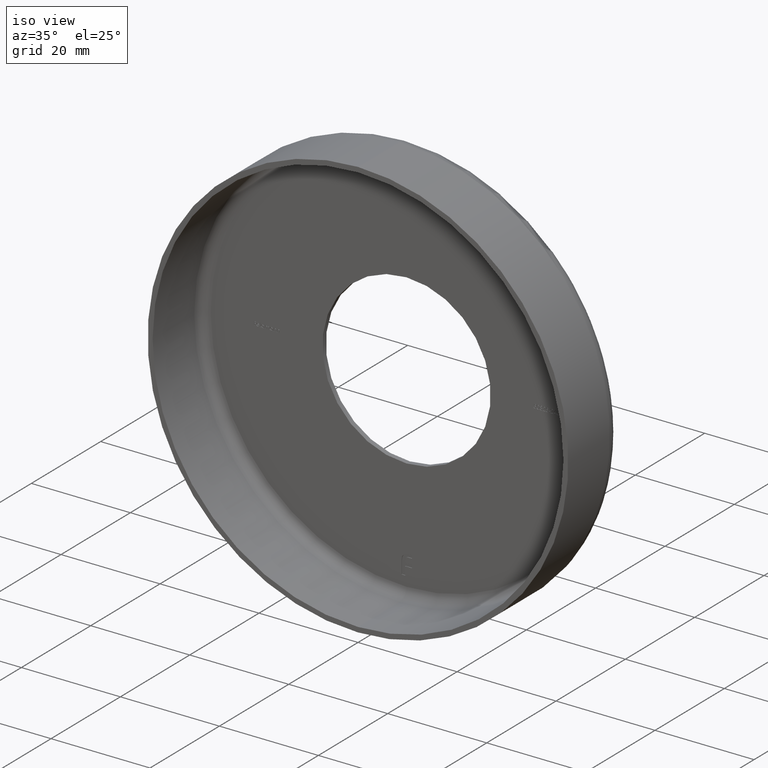
[diagram: clean part render]
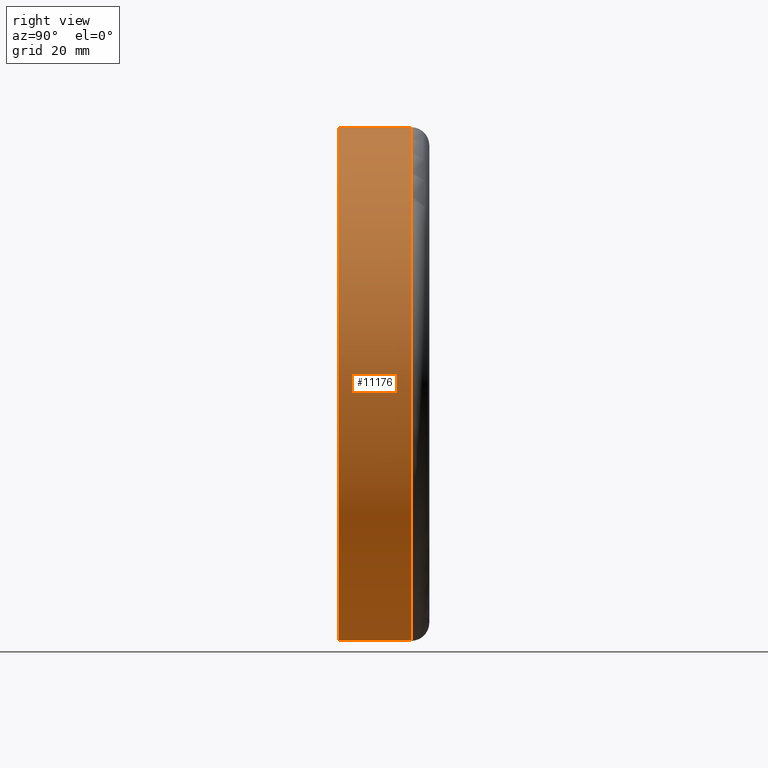
[diagram: tour spotlight — one face highlighted and labeled with its STEP entity id]
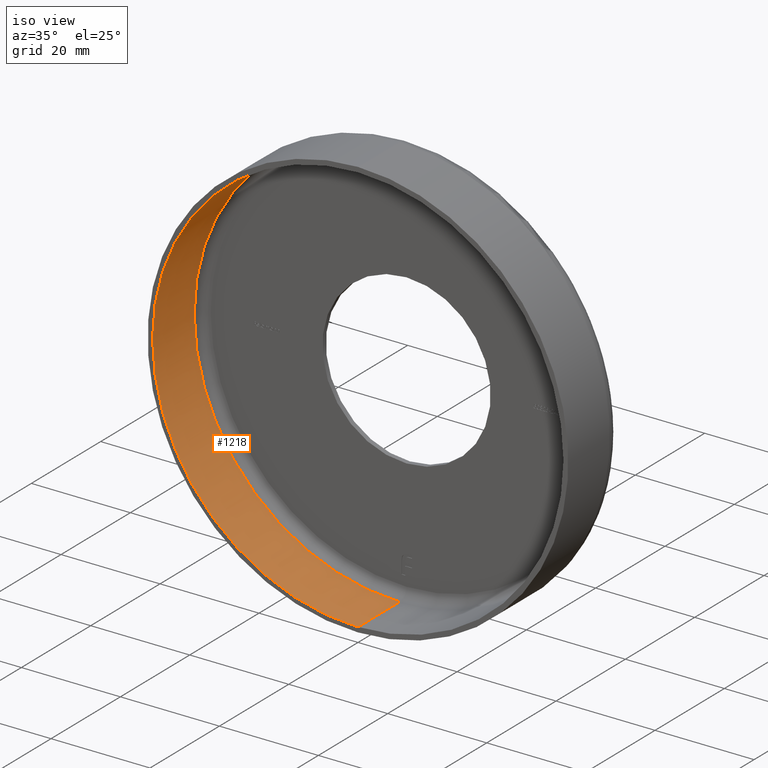
[diagram: tour spotlight — one face highlighted and labeled with its STEP entity id]
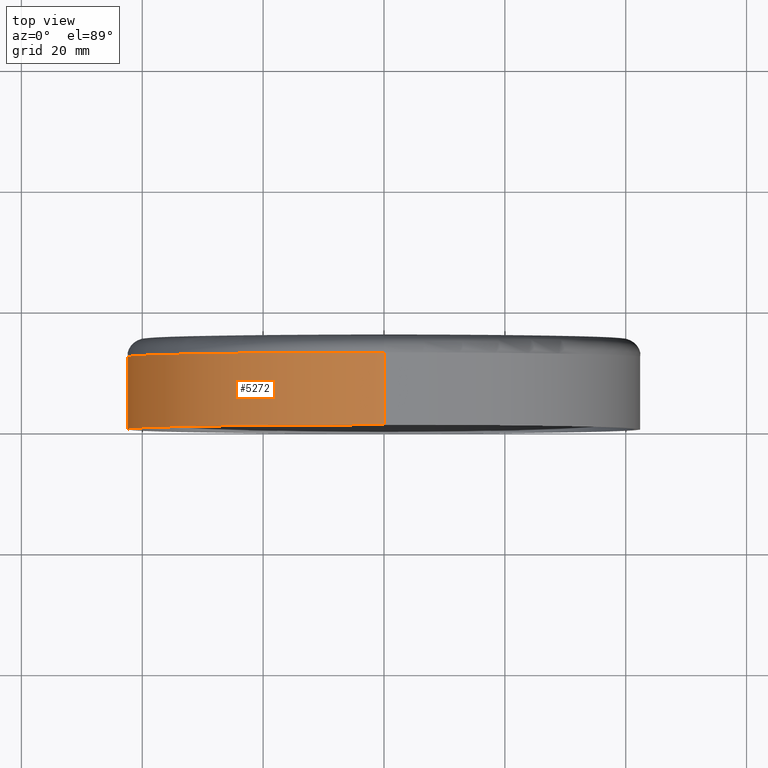
[diagram: tour spotlight — one face highlighted and labeled with its STEP entity id]
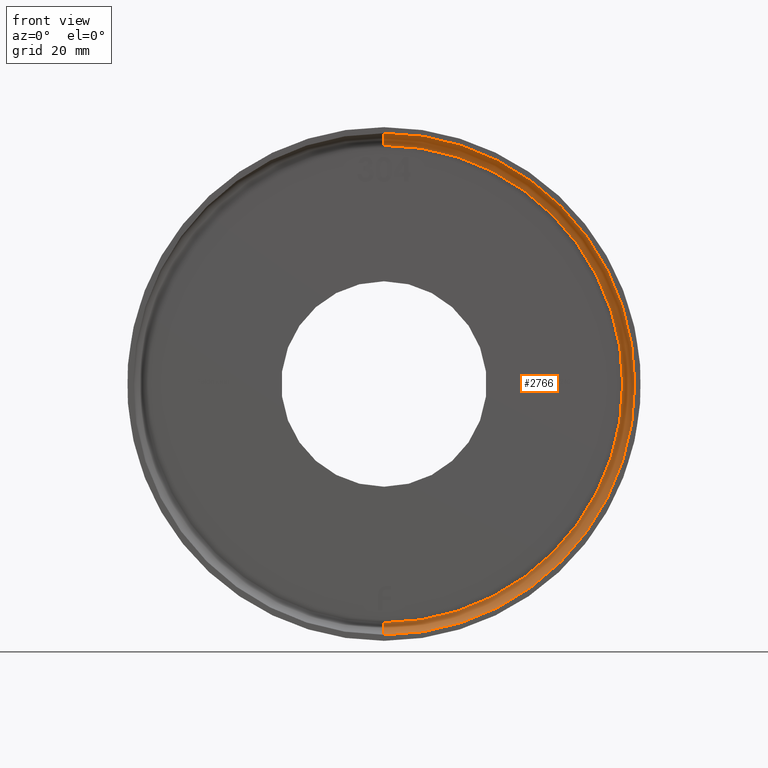
[diagram: tour spotlight — one face highlighted and labeled with its STEP entity id]
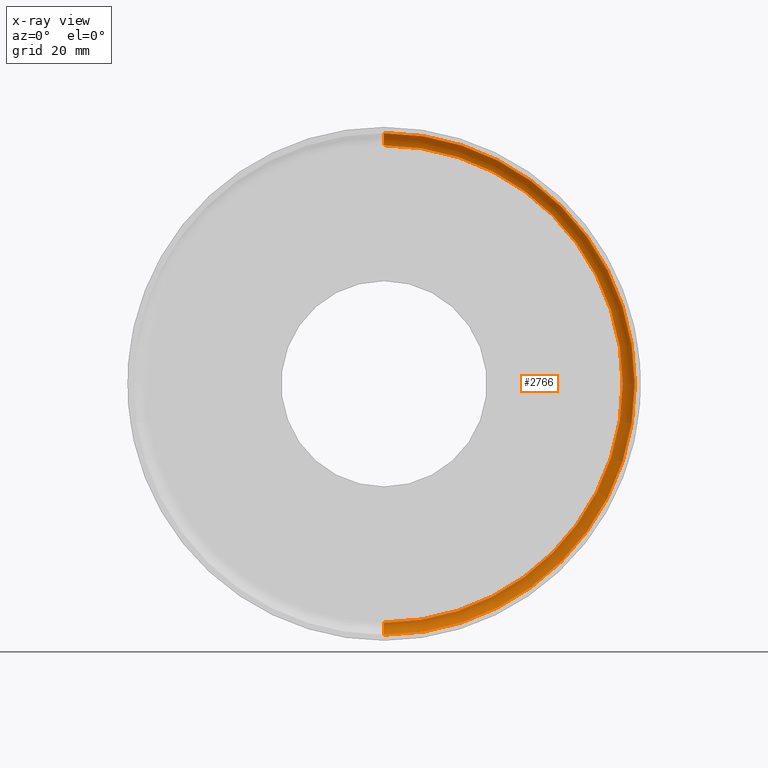
[diagram: x-ray of the same camera — body ghosted, this tour face saturated]
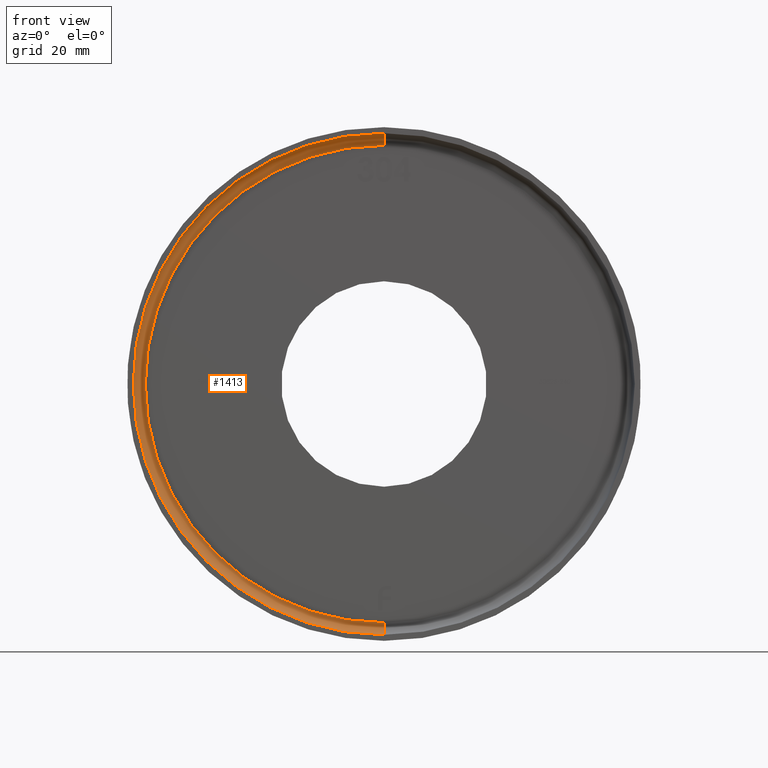
[diagram: tour spotlight — one face highlighted and labeled with its STEP entity id]
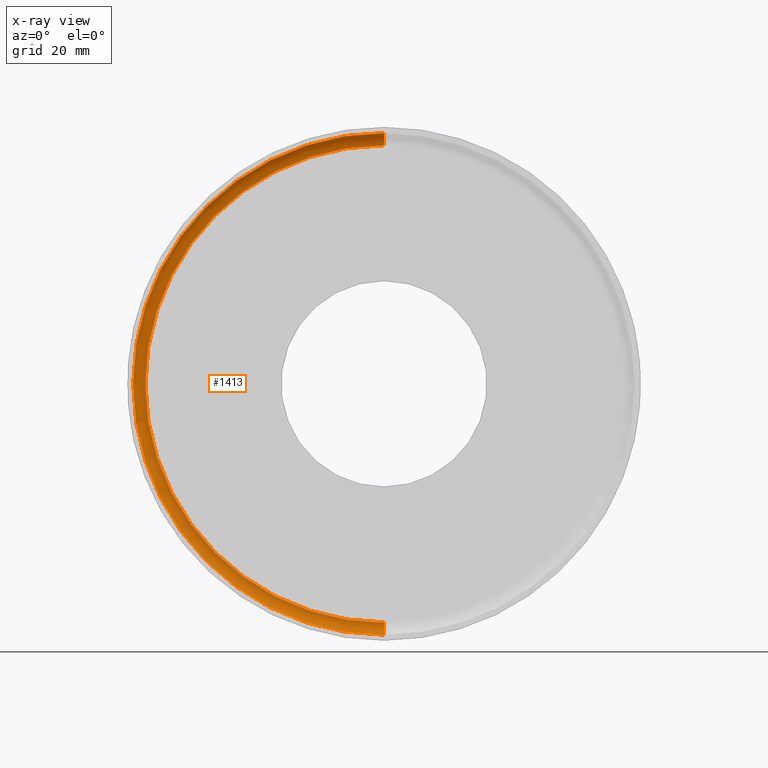
[diagram: x-ray of the same camera — body ghosted, this tour face saturated]
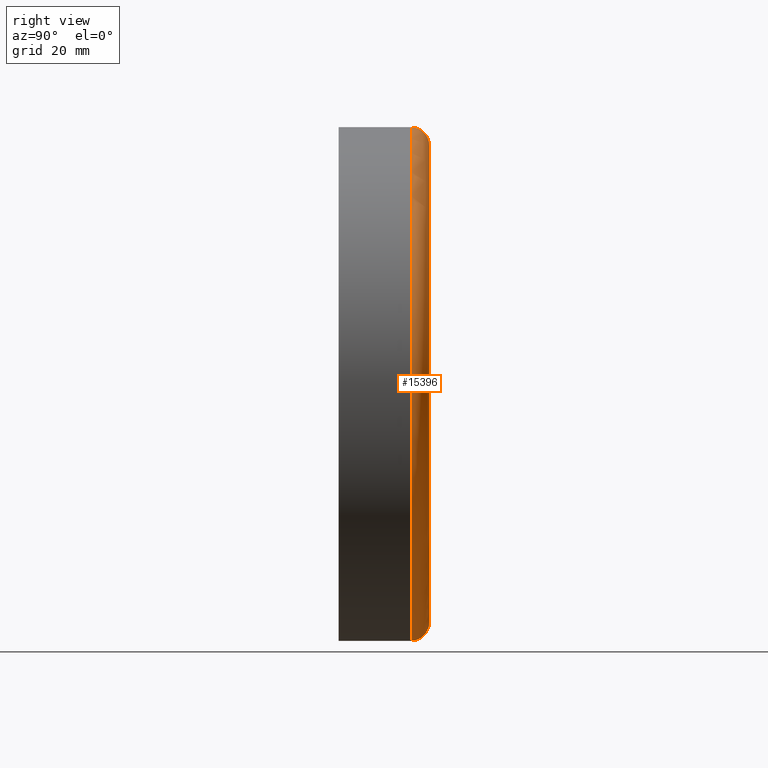
[diagram: tour spotlight — one face highlighted and labeled with its STEP entity id]
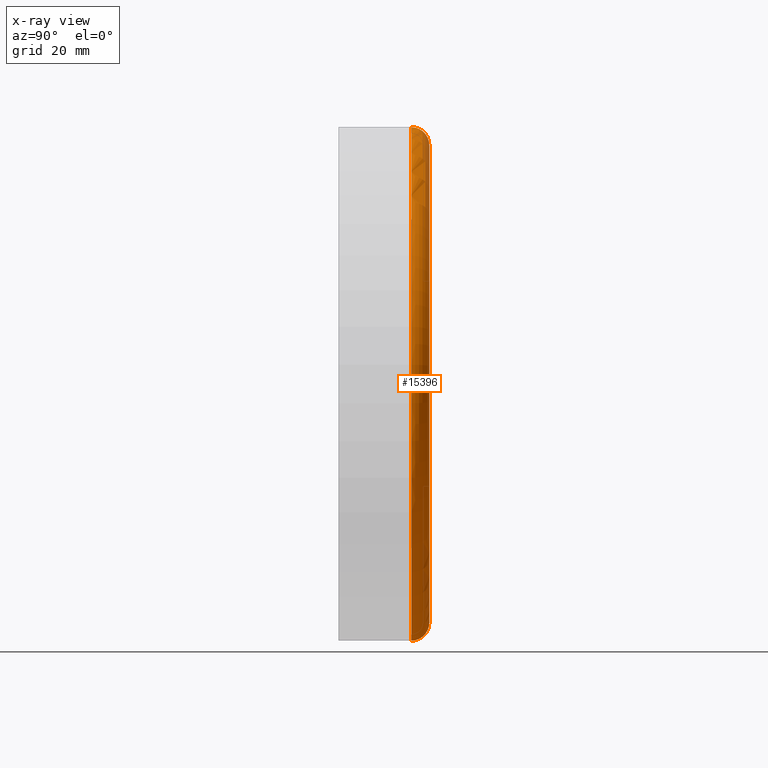
[diagram: x-ray of the same camera — body ghosted, this tour face saturated]
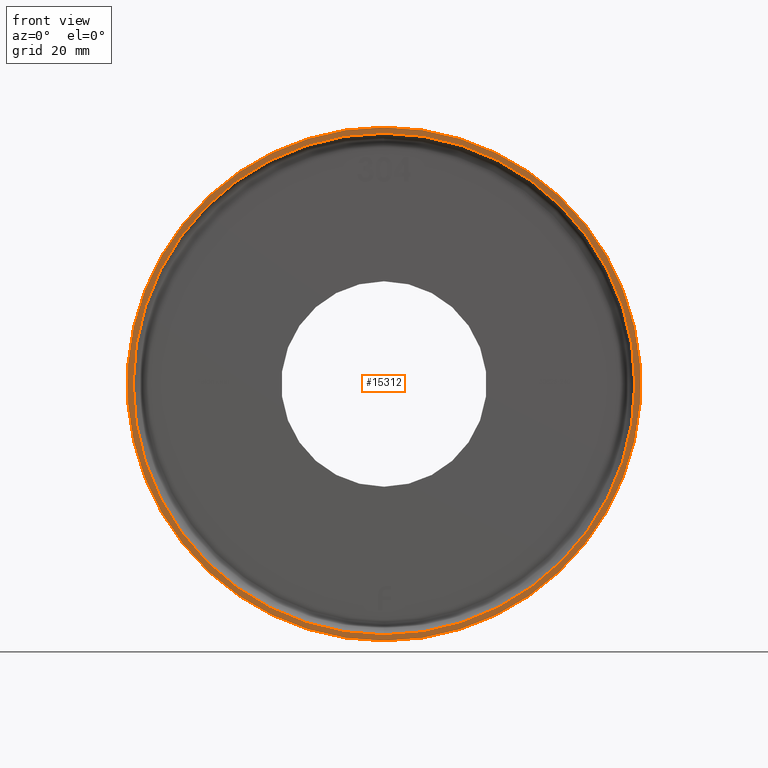
[diagram: tour spotlight — one face highlighted and labeled with its STEP entity id]
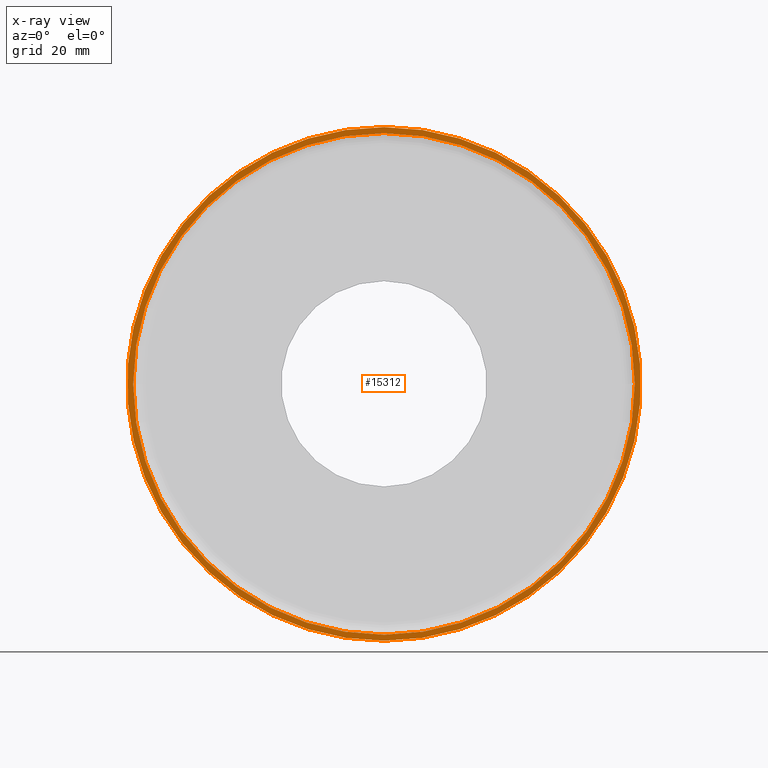
[diagram: x-ray of the same camera — body ghosted, this tour face saturated]
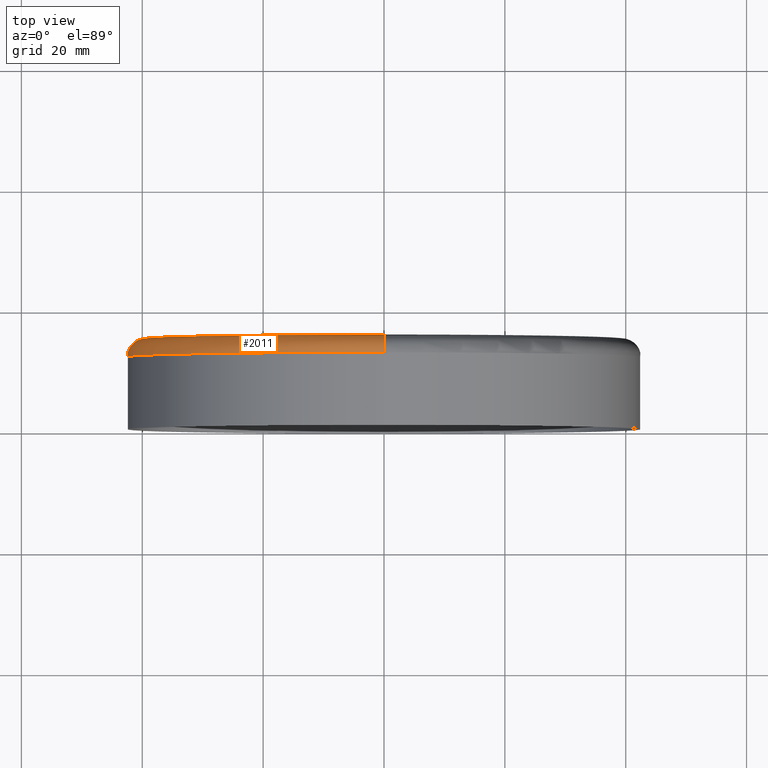
[diagram: tour spotlight — one face highlighted and labeled with its STEP entity id]
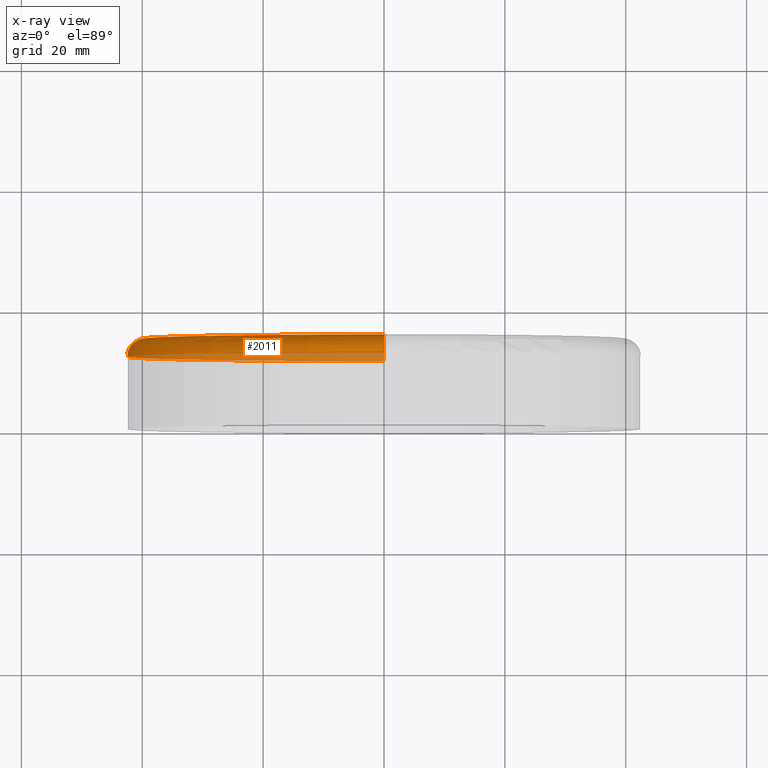
[diagram: x-ray of the same camera — body ghosted, this tour face saturated]
A machine part: a face-by-face anatomy tour. The part has 302 B-rep faces; the first image is the clean iso view, then the 8 largest visible faces are spotlighted one at a time (largest first), each with its STEP entity span.

Face 1 — right view, entity #11176. In plain terms, the highlighted cylindrical surface (partial cylindrical patch) has radius 42.5 mm, axis along (-0, -1, -0).
Definition (entity closure, byte-faithful):
#66 = DIRECTION ( 'NONE',  ( -0.000000000000000000, -1.000000000000000000, -0.000000000000000000 ) ) ;
#205 = VERTEX_POINT ( 'NONE', #3479 ) ;
#640 = ORIENTED_EDGE ( 'NONE', *, *, #7135, .T. ) ;
#1390 = VECTOR ( 'NONE', #5826, 1000.000000000000000 ) ;
#1700 = EDGE_LOOP ( 'NONE', ( #16448, #640, #14196, #13913 ) ) ;
#2087 = CARTESIAN_POINT ( 'NONE',  ( 0.000000000000000000, 12.00000000000000000, -42.50000000000000711 ) ) ;
#2303 = CARTESIAN_POINT ( 'NONE',  ( 5.204748896376252474E-15, 0.000000000000000000, 42.50000000000000711 ) ) ;
#2709 = CARTESIAN_POINT ( 'NONE',  ( 0.000000000000000000, 0.000000000000000000, -42.50000000000000711 ) ) ;
#2875 = EDGE_CURVE ( 'NONE', #10013, #13659, #15468, .T. ) ;
#3185 = VERTEX_POINT ( 'NONE', #2303 ) ;
#3479 = CARTESIAN_POINT ( 'NONE',  ( 5.204748896376252474E-15, 12.00000000000000000, 42.50000000000000711 ) ) ;
#4150 = CARTESIAN_POINT ( 'NONE',  ( 0.000000000000000000, 0.000000000000000000, 0.000000000000000000 ) ) ;
#4202 = DIRECTION ( 'NONE',  ( 0.000000000000000000, 0.000000000000000000, -1.000000000000000000 ) ) ;
#5162 = DIRECTION ( 'NONE',  ( 0.000000000000000000, 0.000000000000000000, -1.000000000000000000 ) ) ;
#5423 = DIRECTION ( 'NONE',  ( -0.000000000000000000, -1.000000000000000000, -0.000000000000000000 ) ) ;
#5467 = CYLINDRICAL_SURFACE ( 'NONE', #8479, 42.50000000000000711 ) ;
#5507 = EDGE_CURVE ( 'NONE', #10013, #205, #16244, .T. ) ;
#5826 = DIRECTION ( 'NONE',  ( -0.000000000000000000, -1.000000000000000000, -0.000000000000000000 ) ) ;
#7135 = EDGE_CURVE ( 'NONE', #205, #3185, #13332, .T. ) ;
#7884 = CARTESIAN_POINT ( 'NONE',  ( 0.000000000000000000, 0.000000000000000000, 0.000000000000000000 ) ) ;
#7927 = AXIS2_PLACEMENT_3D ( 'NONE', #7884, #15719, #5162 ) ;
#8479 = AXIS2_PLACEMENT_3D ( 'NONE', #4150, #5423, #4202 ) ;
#9366 = FACE_OUTER_BOUND ( 'NONE', #1700, .T. ) ;
#10013 = VERTEX_POINT ( 'NONE', #2087 ) ;
#10777 = CARTESIAN_POINT ( 'NONE',  ( 5.204748896376252474E-15, 0.000000000000000000, 42.50000000000000711 ) ) ;
#11176 = ADVANCED_FACE ( 'NONE', ( #9366 ), #5467, .T. ) ;
#11576 = EDGE_CURVE ( 'NONE', #13659, #3185, #15153, .T. ) ;
#13332 = LINE ( 'NONE', #10777, #1390 ) ;
#13659 = VERTEX_POINT ( 'NONE', #15574 ) ;
#13913 = ORIENTED_EDGE ( 'NONE', *, *, #2875, .F. ) ;
#14035 = VECTOR ( 'NONE', #66, 1000.000000000000000 ) ;
#14196 = ORIENTED_EDGE ( 'NONE', *, *, #11576, .F. ) ;
#14254 = DIRECTION ( 'NONE',  ( 0.000000000000000000, 0.000000000000000000, -1.000000000000000000 ) ) ;
#15153 = CIRCLE ( 'NONE', #7927, 42.50000000000000711 ) ;
#15468 = LINE ( 'NONE', #2709, #14035 ) ;
#15574 = CARTESIAN_POINT ( 'NONE',  ( 0.000000000000000000, 0.000000000000000000, -42.50000000000000711 ) ) ;
#15719 = DIRECTION ( 'NONE',  ( -0.000000000000000000, -1.000000000000000000, -0.000000000000000000 ) ) ;
#16244 = CIRCLE ( 'NONE', #16622, 42.50000000000000711 ) ;
#16448 = ORIENTED_EDGE ( 'NONE', *, *, #5507, .T. ) ;
#16622 = AXIS2_PLACEMENT_3D ( 'NONE', #16860, #17025, #14254 ) ;
#16860 = CARTESIAN_POINT ( 'NONE',  ( 0.000000000000000000, 12.00000000000000000, 0.000000000000000000 ) ) ;
#17025 = DIRECTION ( 'NONE',  ( -0.000000000000000000, -1.000000000000000000, -0.000000000000000000 ) ) ;

Face 2 — iso view, entity #1218. In plain terms, the highlighted cylindrical surface (partial cylindrical patch) has radius 41.5 mm, axis along (-0, -1, -0).
Definition (entity closure, byte-faithful):
#452 = CARTESIAN_POINT ( 'NONE',  ( 5.082284216461516537E-15, 0.000000000000000000, 41.50000000000000711 ) ) ;
#570 = EDGE_CURVE ( 'NONE', #10306, #5268, #8280, .T. ) ;
#820 = ORIENTED_EDGE ( 'NONE', *, *, #10399, .F. ) ;
#1218 = ADVANCED_FACE ( 'NONE', ( #9917 ), #4159, .F. ) ;
#1741 = EDGE_CURVE ( 'NONE', #13581, #5268, #7020, .T. ) ;
#1771 = CIRCLE ( 'NONE', #7138, 41.50000000000000711 ) ;
#2439 = ORIENTED_EDGE ( 'NONE', *, *, #570, .T. ) ;
#3335 = CARTESIAN_POINT ( 'NONE',  ( 5.082284216461516537E-15, -1.224646799147353207E-16, 41.50000000000000711 ) ) ;
#3513 = ORIENTED_EDGE ( 'NONE', *, *, #1741, .F. ) ;
#3892 = CARTESIAN_POINT ( 'NONE',  ( 0.000000000000000000, 12.00000000000000000, 0.000000000000000000 ) ) ;
#4109 = AXIS2_PLACEMENT_3D ( 'NONE', #7808, #14660, #5093 ) ;
#4159 = CYLINDRICAL_SURFACE ( 'NONE', #6663, 41.50000000000000711 ) ;
#4465 = DIRECTION ( 'NONE',  ( -0.000000000000000000, -1.000000000000000000, -0.000000000000000000 ) ) ;
#4695 = EDGE_CURVE ( 'NONE', #8418, #10306, #15029, .T. ) ;
#5093 = DIRECTION ( 'NONE',  ( 0.000000000000000000, 0.000000000000000000, -1.000000000000000000 ) ) ;
#5145 = CARTESIAN_POINT ( 'NONE',  ( 5.082284216461516537E-15, 12.00000000000000000, 41.50000000000000711 ) ) ;
#5268 = VERTEX_POINT ( 'NONE', #9878 ) ;
#5697 = CARTESIAN_POINT ( 'NONE',  ( 0.000000000000000000, 0.000000000000000000, 0.000000000000000000 ) ) ;
#6663 = AXIS2_PLACEMENT_3D ( 'NONE', #5697, #11122, #14900 ) ;
#7020 = LINE ( 'NONE', #8160, #10318 ) ;
#7138 = AXIS2_PLACEMENT_3D ( 'NONE', #3892, #7879, #17105 ) ;
#7808 = CARTESIAN_POINT ( 'NONE',  ( 0.000000000000000000, -1.224646799147353207E-16, 0.000000000000000000 ) ) ;
#7879 = DIRECTION ( 'NONE',  ( -0.000000000000000000, -1.000000000000000000, -0.000000000000000000 ) ) ;
#8023 = VECTOR ( 'NONE', #4465, 1000.000000000000000 ) ;
#8160 = CARTESIAN_POINT ( 'NONE',  ( 0.000000000000000000, 0.000000000000000000, -41.50000000000000711 ) ) ;
#8280 = CIRCLE ( 'NONE', #4109, 41.50000000000000711 ) ;
#8418 = VERTEX_POINT ( 'NONE', #5145 ) ;
#9878 = CARTESIAN_POINT ( 'NONE',  ( 0.000000000000000000, -1.224646799147353207E-16, -41.50000000000000711 ) ) ;
#9917 = FACE_OUTER_BOUND ( 'NONE', #10528, .T. ) ;
#10306 = VERTEX_POINT ( 'NONE', #3335 ) ;
#10318 = VECTOR ( 'NONE', #13572, 1000.000000000000000 ) ;
#10399 = EDGE_CURVE ( 'NONE', #8418, #13581, #1771, .T. ) ;
#10528 = EDGE_LOOP ( 'NONE', ( #820, #13869, #2439, #3513 ) ) ;
#11122 = DIRECTION ( 'NONE',  ( -0.000000000000000000, -1.000000000000000000, -0.000000000000000000 ) ) ;
#13572 = DIRECTION ( 'NONE',  ( -0.000000000000000000, -1.000000000000000000, -0.000000000000000000 ) ) ;
#13581 = VERTEX_POINT ( 'NONE', #16691 ) ;
#13869 = ORIENTED_EDGE ( 'NONE', *, *, #4695, .T. ) ;
#14660 = DIRECTION ( 'NONE',  ( -0.000000000000000000, -1.000000000000000000, -0.000000000000000000 ) ) ;
#14900 = DIRECTION ( 'NONE',  ( 0.000000000000000000, 0.000000000000000000, -1.000000000000000000 ) ) ;
#15029 = LINE ( 'NONE', #452, #8023 ) ;
#16691 = CARTESIAN_POINT ( 'NONE',  ( 0.000000000000000000, 12.00000000000000000, -41.50000000000000711 ) ) ;
#17105 = DIRECTION ( 'NONE',  ( 0.000000000000000000, 0.000000000000000000, -1.000000000000000000 ) ) ;

Face 3 — top view, entity #5272. In plain terms, the highlighted cylindrical surface (partial cylindrical patch) has radius 42.5 mm, axis along (-0, -1, -0).
Definition (entity closure, byte-faithful):
#66 = DIRECTION ( 'NONE',  ( -0.000000000000000000, -1.000000000000000000, -0.000000000000000000 ) ) ;
#205 = VERTEX_POINT ( 'NONE', #3479 ) ;
#678 = AXIS2_PLACEMENT_3D ( 'NONE', #8858, #11529, #10195 ) ;
#1390 = VECTOR ( 'NONE', #5826, 1000.000000000000000 ) ;
#2087 = CARTESIAN_POINT ( 'NONE',  ( 0.000000000000000000, 12.00000000000000000, -42.50000000000000711 ) ) ;
#2303 = CARTESIAN_POINT ( 'NONE',  ( 5.204748896376252474E-15, 0.000000000000000000, 42.50000000000000711 ) ) ;
#2650 = FACE_OUTER_BOUND ( 'NONE', #8637, .T. ) ;
#2709 = CARTESIAN_POINT ( 'NONE',  ( 0.000000000000000000, 0.000000000000000000, -42.50000000000000711 ) ) ;
#2741 = ORIENTED_EDGE ( 'NONE', *, *, #2875, .T. ) ;
#2875 = EDGE_CURVE ( 'NONE', #10013, #13659, #15468, .T. ) ;
#3047 = CIRCLE ( 'NONE', #13960, 42.50000000000000711 ) ;
#3185 = VERTEX_POINT ( 'NONE', #2303 ) ;
#3195 = DIRECTION ( 'NONE',  ( 0.000000000000000000, 0.000000000000000000, -1.000000000000000000 ) ) ;
#3319 = CARTESIAN_POINT ( 'NONE',  ( 0.000000000000000000, 0.000000000000000000, 0.000000000000000000 ) ) ;
#3479 = CARTESIAN_POINT ( 'NONE',  ( 5.204748896376252474E-15, 12.00000000000000000, 42.50000000000000711 ) ) ;
#4491 = CYLINDRICAL_SURFACE ( 'NONE', #16844, 42.50000000000000711 ) ;
#5272 = ADVANCED_FACE ( 'NONE', ( #2650 ), #4491, .T. ) ;
#5408 = EDGE_CURVE ( 'NONE', #3185, #13659, #3047, .T. ) ;
#5419 = ORIENTED_EDGE ( 'NONE', *, *, #5408, .F. ) ;
#5826 = DIRECTION ( 'NONE',  ( -0.000000000000000000, -1.000000000000000000, -0.000000000000000000 ) ) ;
#7135 = EDGE_CURVE ( 'NONE', #205, #3185, #13332, .T. ) ;
#7738 = DIRECTION ( 'NONE',  ( -0.000000000000000000, -1.000000000000000000, -0.000000000000000000 ) ) ;
#8637 = EDGE_LOOP ( 'NONE', ( #14885, #8775, #2741, #5419 ) ) ;
#8772 = CARTESIAN_POINT ( 'NONE',  ( 0.000000000000000000, 0.000000000000000000, 0.000000000000000000 ) ) ;
#8775 = ORIENTED_EDGE ( 'NONE', *, *, #16175, .T. ) ;
#8858 = CARTESIAN_POINT ( 'NONE',  ( 0.000000000000000000, 12.00000000000000000, 0.000000000000000000 ) ) ;
#8930 = DIRECTION ( 'NONE',  ( 0.000000000000000000, 0.000000000000000000, -1.000000000000000000 ) ) ;
#9816 = CIRCLE ( 'NONE', #678, 42.50000000000000711 ) ;
#10013 = VERTEX_POINT ( 'NONE', #2087 ) ;
#10195 = DIRECTION ( 'NONE',  ( 0.000000000000000000, 0.000000000000000000, -1.000000000000000000 ) ) ;
#10777 = CARTESIAN_POINT ( 'NONE',  ( 5.204748896376252474E-15, 0.000000000000000000, 42.50000000000000711 ) ) ;
#11224 = DIRECTION ( 'NONE',  ( -0.000000000000000000, -1.000000000000000000, -0.000000000000000000 ) ) ;
#11529 = DIRECTION ( 'NONE',  ( -0.000000000000000000, -1.000000000000000000, -0.000000000000000000 ) ) ;
#13332 = LINE ( 'NONE', #10777, #1390 ) ;
#13659 = VERTEX_POINT ( 'NONE', #15574 ) ;
#13960 = AXIS2_PLACEMENT_3D ( 'NONE', #8772, #7738, #8930 ) ;
#14035 = VECTOR ( 'NONE', #66, 1000.000000000000000 ) ;
#14885 = ORIENTED_EDGE ( 'NONE', *, *, #7135, .F. ) ;
#15468 = LINE ( 'NONE', #2709, #14035 ) ;
#15574 = CARTESIAN_POINT ( 'NONE',  ( 0.000000000000000000, 0.000000000000000000, -42.50000000000000711 ) ) ;
#16175 = EDGE_CURVE ( 'NONE', #205, #10013, #9816, .T. ) ;
#16844 = AXIS2_PLACEMENT_3D ( 'NONE', #3319, #11224, #3195 ) ;

Face 4 — front view, entity #2766. An x-ray twin of the same camera follows (body ghosted, this face saturated) — the face is partly hidden behind the body. In plain terms, the highlighted toroidal blend (fillet) surface has major radius 39.5 mm and minor (blend) radius 2 mm.
Definition (entity closure, byte-faithful):
#386 = CARTESIAN_POINT ( 'NONE',  ( 0.000000000000000000, 12.00000000000000000, 0.000000000000000000 ) ) ;
#835 = CARTESIAN_POINT ( 'NONE',  ( 0.000000000000000000, 12.00000000000000000, 0.000000000000000000 ) ) ;
#851 = FACE_OUTER_BOUND ( 'NONE', #3046, .T. ) ;
#1112 = ORIENTED_EDGE ( 'NONE', *, *, #15196, .F. ) ;
#1305 = CARTESIAN_POINT ( 'NONE',  ( 0.000000000000000000, 14.00000000000000000, -39.50000000000000711 ) ) ;
#2563 = CIRCLE ( 'NONE', #4062, 2.000000000000001776 ) ;
#2766 = ADVANCED_FACE ( 'NONE', ( #851 ), #3921, .F. ) ;
#2794 = DIRECTION ( 'NONE',  ( -1.224646799147353454E-16, 0.000000000000000000, -1.000000000000000000 ) ) ;
#2816 = CARTESIAN_POINT ( 'NONE',  ( 0.000000000000000000, 14.00000000000000000, 0.000000000000000000 ) ) ;
#3046 = EDGE_LOOP ( 'NONE', ( #3723, #1112, #4633, #6557 ) ) ;
#3217 = CARTESIAN_POINT ( 'NONE',  ( 0.000000000000000000, 12.00000000000000000, -39.50000000000000711 ) ) ;
#3723 = ORIENTED_EDGE ( 'NONE', *, *, #10726, .F. ) ;
#3731 = VERTEX_POINT ( 'NONE', #1305 ) ;
#3921 = TOROIDAL_SURFACE ( 'NONE', #8091, 39.50000000000000711, 2.000000000000000000 ) ;
#4007 = CIRCLE ( 'NONE', #10244, 2.000000000000001776 ) ;
#4062 = AXIS2_PLACEMENT_3D ( 'NONE', #3217, #16365, #13650 ) ;
#4140 = VERTEX_POINT ( 'NONE', #6747 ) ;
#4633 = ORIENTED_EDGE ( 'NONE', *, *, #11331, .T. ) ;
#5145 = CARTESIAN_POINT ( 'NONE',  ( 5.082284216461516537E-15, 12.00000000000000000, 41.50000000000000711 ) ) ;
#6557 = ORIENTED_EDGE ( 'NONE', *, *, #7446, .T. ) ;
#6747 = CARTESIAN_POINT ( 'NONE',  ( 4.959819536546782178E-15, 14.00000000000000000, 39.50000000000000711 ) ) ;
#7446 = EDGE_CURVE ( 'NONE', #13581, #8418, #12917, .T. ) ;
#7663 = AXIS2_PLACEMENT_3D ( 'NONE', #386, #9533, #13404 ) ;
#8091 = AXIS2_PLACEMENT_3D ( 'NONE', #835, #12742, #12634 ) ;
#8418 = VERTEX_POINT ( 'NONE', #5145 ) ;
#9533 = DIRECTION ( 'NONE',  ( -0.000000000000000000, -1.000000000000000000, -0.000000000000000000 ) ) ;
#10244 = AXIS2_PLACEMENT_3D ( 'NONE', #15879, #11882, #2794 ) ;
#10726 = EDGE_CURVE ( 'NONE', #4140, #8418, #4007, .T. ) ;
#10875 = DIRECTION ( 'NONE',  ( -0.000000000000000000, -1.000000000000000000, -0.000000000000000000 ) ) ;
#11331 = EDGE_CURVE ( 'NONE', #3731, #13581, #2563, .T. ) ;
#11494 = AXIS2_PLACEMENT_3D ( 'NONE', #2816, #10875, #13469 ) ;
#11882 = DIRECTION ( 'NONE',  ( 1.000000000000000000, 0.000000000000000000, -1.224646799147353207E-16 ) ) ;
#12634 = DIRECTION ( 'NONE',  ( 0.000000000000000000, 0.000000000000000000, -1.000000000000000000 ) ) ;
#12742 = DIRECTION ( 'NONE',  ( -0.000000000000000000, -1.000000000000000000, -0.000000000000000000 ) ) ;
#12917 = CIRCLE ( 'NONE', #7663, 41.50000000000000711 ) ;
#13404 = DIRECTION ( 'NONE',  ( 0.000000000000000000, 0.000000000000000000, -1.000000000000000000 ) ) ;
#13469 = DIRECTION ( 'NONE',  ( 0.000000000000000000, 0.000000000000000000, -1.000000000000000000 ) ) ;
#13581 = VERTEX_POINT ( 'NONE', #16691 ) ;
#13650 = DIRECTION ( 'NONE',  ( 0.000000000000000000, 0.000000000000000000, 1.000000000000000000 ) ) ;
#15196 = EDGE_CURVE ( 'NONE', #3731, #4140, #15202, .T. ) ;
#15202 = CIRCLE ( 'NONE', #11494, 39.50000000000000711 ) ;
#15879 = CARTESIAN_POINT ( 'NONE',  ( 4.837354856632046241E-15, 12.00000000000000000, 39.50000000000000711 ) ) ;
#16365 = DIRECTION ( 'NONE',  ( -1.000000000000000000, 0.000000000000000000, 0.000000000000000000 ) ) ;
#16691 = CARTESIAN_POINT ( 'NONE',  ( 0.000000000000000000, 12.00000000000000000, -41.50000000000000711 ) ) ;

Face 5 — front view, entity #1413. An x-ray twin of the same camera follows (body ghosted, this face saturated) — the face is partly hidden behind the body. In plain terms, the highlighted toroidal blend (fillet) surface has major radius 39.5 mm and minor (blend) radius 2 mm.
Definition (entity closure, byte-faithful):
#1271 = AXIS2_PLACEMENT_3D ( 'NONE', #2553, #5205, #7861 ) ;
#1305 = CARTESIAN_POINT ( 'NONE',  ( 0.000000000000000000, 14.00000000000000000, -39.50000000000000711 ) ) ;
#1413 = ADVANCED_FACE ( 'NONE', ( #15697 ), #12174, .F. ) ;
#1771 = CIRCLE ( 'NONE', #7138, 41.50000000000000711 ) ;
#2038 = CIRCLE ( 'NONE', #1271, 39.50000000000000711 ) ;
#2553 = CARTESIAN_POINT ( 'NONE',  ( 0.000000000000000000, 14.00000000000000000, 0.000000000000000000 ) ) ;
#2563 = CIRCLE ( 'NONE', #4062, 2.000000000000001776 ) ;
#2794 = DIRECTION ( 'NONE',  ( -1.224646799147353454E-16, 0.000000000000000000, -1.000000000000000000 ) ) ;
#2837 = ORIENTED_EDGE ( 'NONE', *, *, #11331, .F. ) ;
#3217 = CARTESIAN_POINT ( 'NONE',  ( 0.000000000000000000, 12.00000000000000000, -39.50000000000000711 ) ) ;
#3731 = VERTEX_POINT ( 'NONE', #1305 ) ;
#3892 = CARTESIAN_POINT ( 'NONE',  ( 0.000000000000000000, 12.00000000000000000, 0.000000000000000000 ) ) ;
#3963 = CARTESIAN_POINT ( 'NONE',  ( 0.000000000000000000, 12.00000000000000000, 0.000000000000000000 ) ) ;
#4007 = CIRCLE ( 'NONE', #10244, 2.000000000000001776 ) ;
#4062 = AXIS2_PLACEMENT_3D ( 'NONE', #3217, #16365, #13650 ) ;
#4140 = VERTEX_POINT ( 'NONE', #6747 ) ;
#5145 = CARTESIAN_POINT ( 'NONE',  ( 5.082284216461516537E-15, 12.00000000000000000, 41.50000000000000711 ) ) ;
#5205 = DIRECTION ( 'NONE',  ( -0.000000000000000000, -1.000000000000000000, -0.000000000000000000 ) ) ;
#5292 = DIRECTION ( 'NONE',  ( 0.000000000000000000, 0.000000000000000000, -1.000000000000000000 ) ) ;
#5526 = EDGE_CURVE ( 'NONE', #4140, #3731, #2038, .T. ) ;
#6747 = CARTESIAN_POINT ( 'NONE',  ( 4.959819536546782178E-15, 14.00000000000000000, 39.50000000000000711 ) ) ;
#7138 = AXIS2_PLACEMENT_3D ( 'NONE', #3892, #7879, #17105 ) ;
#7780 = ORIENTED_EDGE ( 'NONE', *, *, #5526, .F. ) ;
#7861 = DIRECTION ( 'NONE',  ( 0.000000000000000000, 0.000000000000000000, -1.000000000000000000 ) ) ;
#7879 = DIRECTION ( 'NONE',  ( -0.000000000000000000, -1.000000000000000000, -0.000000000000000000 ) ) ;
#8418 = VERTEX_POINT ( 'NONE', #5145 ) ;
#9125 = DIRECTION ( 'NONE',  ( -0.000000000000000000, -1.000000000000000000, -0.000000000000000000 ) ) ;
#9287 = AXIS2_PLACEMENT_3D ( 'NONE', #3963, #9125, #5292 ) ;
#10244 = AXIS2_PLACEMENT_3D ( 'NONE', #15879, #11882, #2794 ) ;
#10399 = EDGE_CURVE ( 'NONE', #8418, #13581, #1771, .T. ) ;
#10726 = EDGE_CURVE ( 'NONE', #4140, #8418, #4007, .T. ) ;
#11197 = ORIENTED_EDGE ( 'NONE', *, *, #10399, .T. ) ;
#11331 = EDGE_CURVE ( 'NONE', #3731, #13581, #2563, .T. ) ;
#11882 = DIRECTION ( 'NONE',  ( 1.000000000000000000, 0.000000000000000000, -1.224646799147353207E-16 ) ) ;
#12174 = TOROIDAL_SURFACE ( 'NONE', #9287, 39.50000000000000711, 2.000000000000000000 ) ;
#12607 = ORIENTED_EDGE ( 'NONE', *, *, #10726, .T. ) ;
#13581 = VERTEX_POINT ( 'NONE', #16691 ) ;
#13650 = DIRECTION ( 'NONE',  ( 0.000000000000000000, 0.000000000000000000, 1.000000000000000000 ) ) ;
#15697 = FACE_OUTER_BOUND ( 'NONE', #16112, .T. ) ;
#15879 = CARTESIAN_POINT ( 'NONE',  ( 4.837354856632046241E-15, 12.00000000000000000, 39.50000000000000711 ) ) ;
#16112 = EDGE_LOOP ( 'NONE', ( #7780, #12607, #11197, #2837 ) ) ;
#16365 = DIRECTION ( 'NONE',  ( -1.000000000000000000, 0.000000000000000000, 0.000000000000000000 ) ) ;
#16691 = CARTESIAN_POINT ( 'NONE',  ( 0.000000000000000000, 12.00000000000000000, -41.50000000000000711 ) ) ;
#17105 = DIRECTION ( 'NONE',  ( 0.000000000000000000, 0.000000000000000000, -1.000000000000000000 ) ) ;

Face 6 — right view, entity #15396. An x-ray twin of the same camera follows (body ghosted, this face saturated) — the face is partly hidden behind the body. In plain terms, the highlighted toroidal blend (fillet) surface has major radius 39.5 mm and minor (blend) radius 3 mm.
Definition (entity closure, byte-faithful):
#205 = VERTEX_POINT ( 'NONE', #3479 ) ;
#1143 = DIRECTION ( 'NONE',  ( -1.224646799147351975E-16, 0.000000000000000000, -1.000000000000000000 ) ) ;
#1187 = TOROIDAL_SURFACE ( 'NONE', #12358, 39.50000000000000711, 3.000000000000000888 ) ;
#1539 = ORIENTED_EDGE ( 'NONE', *, *, #6278, .T. ) ;
#2087 = CARTESIAN_POINT ( 'NONE',  ( 0.000000000000000000, 12.00000000000000000, -42.50000000000000711 ) ) ;
#2763 = CARTESIAN_POINT ( 'NONE',  ( 0.000000000000000000, 12.00000000000000000, -39.50000000000000711 ) ) ;
#3085 = DIRECTION ( 'NONE',  ( -0.000000000000000000, -1.000000000000000000, -0.000000000000000000 ) ) ;
#3266 = DIRECTION ( 'NONE',  ( 0.000000000000000000, 0.000000000000000000, -1.000000000000000000 ) ) ;
#3479 = CARTESIAN_POINT ( 'NONE',  ( 5.204748896376252474E-15, 12.00000000000000000, 42.50000000000000711 ) ) ;
#3959 = EDGE_LOOP ( 'NONE', ( #11016, #1539, #9077, #16411 ) ) ;
#4247 = CIRCLE ( 'NONE', #11747, 39.50000000000000711 ) ;
#4686 = FACE_OUTER_BOUND ( 'NONE', #3959, .T. ) ;
#4692 = CARTESIAN_POINT ( 'NONE',  ( 0.000000000000000000, 15.00000000000000000, -39.50000000000000711 ) ) ;
#5313 = DIRECTION ( 'NONE',  ( 0.000000000000000000, 0.000000000000000000, -1.000000000000000000 ) ) ;
#5507 = EDGE_CURVE ( 'NONE', #10013, #205, #16244, .T. ) ;
#6278 = EDGE_CURVE ( 'NONE', #14694, #205, #12725, .T. ) ;
#6928 = EDGE_CURVE ( 'NONE', #10568, #14694, #4247, .T. ) ;
#8891 = CARTESIAN_POINT ( 'NONE',  ( 4.837354856632046241E-15, 12.00000000000000000, 39.50000000000000711 ) ) ;
#9077 = ORIENTED_EDGE ( 'NONE', *, *, #5507, .F. ) ;
#9093 = DIRECTION ( 'NONE',  ( -0.000000000000000000, -1.000000000000000000, -0.000000000000000000 ) ) ;
#9429 = DIRECTION ( 'NONE',  ( 0.000000000000000000, 0.000000000000000000, 1.000000000000000000 ) ) ;
#10013 = VERTEX_POINT ( 'NONE', #2087 ) ;
#10568 = VERTEX_POINT ( 'NONE', #4692 ) ;
#11016 = ORIENTED_EDGE ( 'NONE', *, *, #6928, .T. ) ;
#11179 = CARTESIAN_POINT ( 'NONE',  ( 0.000000000000000000, 12.00000000000000000, 0.000000000000000000 ) ) ;
#11678 = CIRCLE ( 'NONE', #16234, 3.000000000000002665 ) ;
#11747 = AXIS2_PLACEMENT_3D ( 'NONE', #13089, #9093, #5313 ) ;
#12019 = DIRECTION ( 'NONE',  ( -1.000000000000000000, 0.000000000000000000, 0.000000000000000000 ) ) ;
#12358 = AXIS2_PLACEMENT_3D ( 'NONE', #11179, #3085, #3266 ) ;
#12648 = AXIS2_PLACEMENT_3D ( 'NONE', #8891, #15655, #1143 ) ;
#12725 = CIRCLE ( 'NONE', #12648, 3.000000000000002665 ) ;
#13089 = CARTESIAN_POINT ( 'NONE',  ( 0.000000000000000000, 15.00000000000000000, 0.000000000000000000 ) ) ;
#14254 = DIRECTION ( 'NONE',  ( 0.000000000000000000, 0.000000000000000000, -1.000000000000000000 ) ) ;
#14694 = VERTEX_POINT ( 'NONE', #15720 ) ;
#15217 = EDGE_CURVE ( 'NONE', #10568, #10013, #11678, .T. ) ;
#15396 = ADVANCED_FACE ( 'NONE', ( #4686 ), #1187, .T. ) ;
#15655 = DIRECTION ( 'NONE',  ( 1.000000000000000000, 0.000000000000000000, -1.224646799147353207E-16 ) ) ;
#15720 = CARTESIAN_POINT ( 'NONE',  ( 5.021051876504148963E-15, 15.00000000000000000, 39.50000000000000711 ) ) ;
#16234 = AXIS2_PLACEMENT_3D ( 'NONE', #2763, #12019, #9429 ) ;
#16244 = CIRCLE ( 'NONE', #16622, 42.50000000000000711 ) ;
#16411 = ORIENTED_EDGE ( 'NONE', *, *, #15217, .F. ) ;
#16622 = AXIS2_PLACEMENT_3D ( 'NONE', #16860, #17025, #14254 ) ;
#16860 = CARTESIAN_POINT ( 'NONE',  ( 0.000000000000000000, 12.00000000000000000, 0.000000000000000000 ) ) ;
#17025 = DIRECTION ( 'NONE',  ( -0.000000000000000000, -1.000000000000000000, -0.000000000000000000 ) ) ;

Face 7 — front view, entity #15312. An x-ray twin of the same camera follows (body ghosted, this face saturated) — the face is partly hidden behind the body. In plain terms, the highlighted planar face has unit normal (0, -1, -0).
Definition (entity closure, byte-faithful):
#570 = EDGE_CURVE ( 'NONE', #10306, #5268, #8280, .T. ) ;
#1599 = FACE_BOUND ( 'NONE', #13987, .T. ) ;
#1742 = DIRECTION ( 'NONE',  ( -0.000000000000000000, -1.000000000000000000, -0.000000000000000000 ) ) ;
#2303 = CARTESIAN_POINT ( 'NONE',  ( 5.204748896376252474E-15, 0.000000000000000000, 42.50000000000000711 ) ) ;
#2593 = AXIS2_PLACEMENT_3D ( 'NONE', #6913, #1742, #5710 ) ;
#2974 = CARTESIAN_POINT ( 'NONE',  ( 41.50000000000000711, -6.123233995736766036E-17, 0.000000000000000000 ) ) ;
#3047 = CIRCLE ( 'NONE', #13960, 42.50000000000000711 ) ;
#3185 = VERTEX_POINT ( 'NONE', #2303 ) ;
#3335 = CARTESIAN_POINT ( 'NONE',  ( 5.082284216461516537E-15, -1.224646799147353207E-16, 41.50000000000000711 ) ) ;
#4109 = AXIS2_PLACEMENT_3D ( 'NONE', #7808, #14660, #5093 ) ;
#4334 = EDGE_LOOP ( 'NONE', ( #6227, #16293 ) ) ;
#5093 = DIRECTION ( 'NONE',  ( 0.000000000000000000, 0.000000000000000000, -1.000000000000000000 ) ) ;
#5162 = DIRECTION ( 'NONE',  ( 0.000000000000000000, 0.000000000000000000, -1.000000000000000000 ) ) ;
#5268 = VERTEX_POINT ( 'NONE', #9878 ) ;
#5408 = EDGE_CURVE ( 'NONE', #3185, #13659, #3047, .T. ) ;
#5648 = EDGE_CURVE ( 'NONE', #5268, #10306, #7995, .T. ) ;
#5710 = DIRECTION ( 'NONE',  ( 0.000000000000000000, 0.000000000000000000, -1.000000000000000000 ) ) ;
#6227 = ORIENTED_EDGE ( 'NONE', *, *, #11576, .T. ) ;
#6841 = AXIS2_PLACEMENT_3D ( 'NONE', #2974, #12186, #13525 ) ;
#6913 = CARTESIAN_POINT ( 'NONE',  ( 0.000000000000000000, -1.224646799147353207E-16, 0.000000000000000000 ) ) ;
#7738 = DIRECTION ( 'NONE',  ( -0.000000000000000000, -1.000000000000000000, -0.000000000000000000 ) ) ;
#7808 = CARTESIAN_POINT ( 'NONE',  ( 0.000000000000000000, -1.224646799147353207E-16, 0.000000000000000000 ) ) ;
#7884 = CARTESIAN_POINT ( 'NONE',  ( 0.000000000000000000, 0.000000000000000000, 0.000000000000000000 ) ) ;
#7927 = AXIS2_PLACEMENT_3D ( 'NONE', #7884, #15719, #5162 ) ;
#7995 = CIRCLE ( 'NONE', #2593, 41.50000000000000711 ) ;
#8003 = PLANE ( 'NONE',  #6841 ) ;
#8280 = CIRCLE ( 'NONE', #4109, 41.50000000000000711 ) ;
#8772 = CARTESIAN_POINT ( 'NONE',  ( 0.000000000000000000, 0.000000000000000000, 0.000000000000000000 ) ) ;
#8930 = DIRECTION ( 'NONE',  ( 0.000000000000000000, 0.000000000000000000, -1.000000000000000000 ) ) ;
#9418 = FACE_OUTER_BOUND ( 'NONE', #4334, .T. ) ;
#9878 = CARTESIAN_POINT ( 'NONE',  ( 0.000000000000000000, -1.224646799147353207E-16, -41.50000000000000711 ) ) ;
#10306 = VERTEX_POINT ( 'NONE', #3335 ) ;
#10623 = ORIENTED_EDGE ( 'NONE', *, *, #570, .F. ) ;
#11576 = EDGE_CURVE ( 'NONE', #13659, #3185, #15153, .T. ) ;
#12186 = DIRECTION ( 'NONE',  ( 0.000000000000000000, -1.000000000000000000, -0.000000000000000000 ) ) ;
#13148 = ORIENTED_EDGE ( 'NONE', *, *, #5648, .F. ) ;
#13525 = DIRECTION ( 'NONE',  ( 0.000000000000000000, 0.000000000000000000, -1.000000000000000000 ) ) ;
#13659 = VERTEX_POINT ( 'NONE', #15574 ) ;
#13960 = AXIS2_PLACEMENT_3D ( 'NONE', #8772, #7738, #8930 ) ;
#13987 = EDGE_LOOP ( 'NONE', ( #13148, #10623 ) ) ;
#14660 = DIRECTION ( 'NONE',  ( -0.000000000000000000, -1.000000000000000000, -0.000000000000000000 ) ) ;
#15153 = CIRCLE ( 'NONE', #7927, 42.50000000000000711 ) ;
#15312 = ADVANCED_FACE ( 'NONE', ( #9418, #1599 ), #8003, .T. ) ;
#15574 = CARTESIAN_POINT ( 'NONE',  ( 0.000000000000000000, 0.000000000000000000, -42.50000000000000711 ) ) ;
#15719 = DIRECTION ( 'NONE',  ( -0.000000000000000000, -1.000000000000000000, -0.000000000000000000 ) ) ;
#16293 = ORIENTED_EDGE ( 'NONE', *, *, #5408, .T. ) ;

Face 8 — top view, entity #2011. An x-ray twin of the same camera follows (body ghosted, this face saturated) — the face is partly hidden behind the body. In plain terms, the highlighted toroidal blend (fillet) surface has major radius 39.5 mm and minor (blend) radius 3 mm.
Definition (entity closure, byte-faithful):
#205 = VERTEX_POINT ( 'NONE', #3479 ) ;
#678 = AXIS2_PLACEMENT_3D ( 'NONE', #8858, #11529, #10195 ) ;
#1143 = DIRECTION ( 'NONE',  ( -1.224646799147351975E-16, 0.000000000000000000, -1.000000000000000000 ) ) ;
#2011 = ADVANCED_FACE ( 'NONE', ( #7445 ), #15290, .T. ) ;
#2087 = CARTESIAN_POINT ( 'NONE',  ( 0.000000000000000000, 12.00000000000000000, -42.50000000000000711 ) ) ;
#2289 = EDGE_LOOP ( 'NONE', ( #10649, #4416, #12212, #6061 ) ) ;
#2710 = DIRECTION ( 'NONE',  ( -0.000000000000000000, -1.000000000000000000, -0.000000000000000000 ) ) ;
#2763 = CARTESIAN_POINT ( 'NONE',  ( 0.000000000000000000, 12.00000000000000000, -39.50000000000000711 ) ) ;
#3479 = CARTESIAN_POINT ( 'NONE',  ( 5.204748896376252474E-15, 12.00000000000000000, 42.50000000000000711 ) ) ;
#4416 = ORIENTED_EDGE ( 'NONE', *, *, #13522, .T. ) ;
#4692 = CARTESIAN_POINT ( 'NONE',  ( 0.000000000000000000, 15.00000000000000000, -39.50000000000000711 ) ) ;
#5668 = DIRECTION ( 'NONE',  ( 0.000000000000000000, 0.000000000000000000, -1.000000000000000000 ) ) ;
#6061 = ORIENTED_EDGE ( 'NONE', *, *, #16175, .F. ) ;
#6278 = EDGE_CURVE ( 'NONE', #14694, #205, #12725, .T. ) ;
#6389 = AXIS2_PLACEMENT_3D ( 'NONE', #9807, #13564, #5668 ) ;
#7445 = FACE_OUTER_BOUND ( 'NONE', #2289, .T. ) ;
#8858 = CARTESIAN_POINT ( 'NONE',  ( 0.000000000000000000, 12.00000000000000000, 0.000000000000000000 ) ) ;
#8891 = CARTESIAN_POINT ( 'NONE',  ( 4.837354856632046241E-15, 12.00000000000000000, 39.50000000000000711 ) ) ;
#9429 = DIRECTION ( 'NONE',  ( 0.000000000000000000, 0.000000000000000000, 1.000000000000000000 ) ) ;
#9807 = CARTESIAN_POINT ( 'NONE',  ( 0.000000000000000000, 15.00000000000000000, 0.000000000000000000 ) ) ;
#9816 = CIRCLE ( 'NONE', #678, 42.50000000000000711 ) ;
#9868 = CIRCLE ( 'NONE', #6389, 39.50000000000000711 ) ;
#10013 = VERTEX_POINT ( 'NONE', #2087 ) ;
#10195 = DIRECTION ( 'NONE',  ( 0.000000000000000000, 0.000000000000000000, -1.000000000000000000 ) ) ;
#10514 = AXIS2_PLACEMENT_3D ( 'NONE', #10713, #2710, #14684 ) ;
#10568 = VERTEX_POINT ( 'NONE', #4692 ) ;
#10649 = ORIENTED_EDGE ( 'NONE', *, *, #6278, .F. ) ;
#10713 = CARTESIAN_POINT ( 'NONE',  ( 0.000000000000000000, 12.00000000000000000, 0.000000000000000000 ) ) ;
#11529 = DIRECTION ( 'NONE',  ( -0.000000000000000000, -1.000000000000000000, -0.000000000000000000 ) ) ;
#11678 = CIRCLE ( 'NONE', #16234, 3.000000000000002665 ) ;
#12019 = DIRECTION ( 'NONE',  ( -1.000000000000000000, 0.000000000000000000, 0.000000000000000000 ) ) ;
#12212 = ORIENTED_EDGE ( 'NONE', *, *, #15217, .T. ) ;
#12648 = AXIS2_PLACEMENT_3D ( 'NONE', #8891, #15655, #1143 ) ;
#12725 = CIRCLE ( 'NONE', #12648, 3.000000000000002665 ) ;
#13522 = EDGE_CURVE ( 'NONE', #14694, #10568, #9868, .T. ) ;
#13564 = DIRECTION ( 'NONE',  ( -0.000000000000000000, -1.000000000000000000, -0.000000000000000000 ) ) ;
#14684 = DIRECTION ( 'NONE',  ( 0.000000000000000000, 0.000000000000000000, -1.000000000000000000 ) ) ;
#14694 = VERTEX_POINT ( 'NONE', #15720 ) ;
#15217 = EDGE_CURVE ( 'NONE', #10568, #10013, #11678, .T. ) ;
#15290 = TOROIDAL_SURFACE ( 'NONE', #10514, 39.50000000000000711, 3.000000000000000888 ) ;
#15655 = DIRECTION ( 'NONE',  ( 1.000000000000000000, 0.000000000000000000, -1.224646799147353207E-16 ) ) ;
#15720 = CARTESIAN_POINT ( 'NONE',  ( 5.021051876504148963E-15, 15.00000000000000000, 39.50000000000000711 ) ) ;
#16175 = EDGE_CURVE ( 'NONE', #205, #10013, #9816, .T. ) ;
#16234 = AXIS2_PLACEMENT_3D ( 'NONE', #2763, #12019, #9429 ) ;